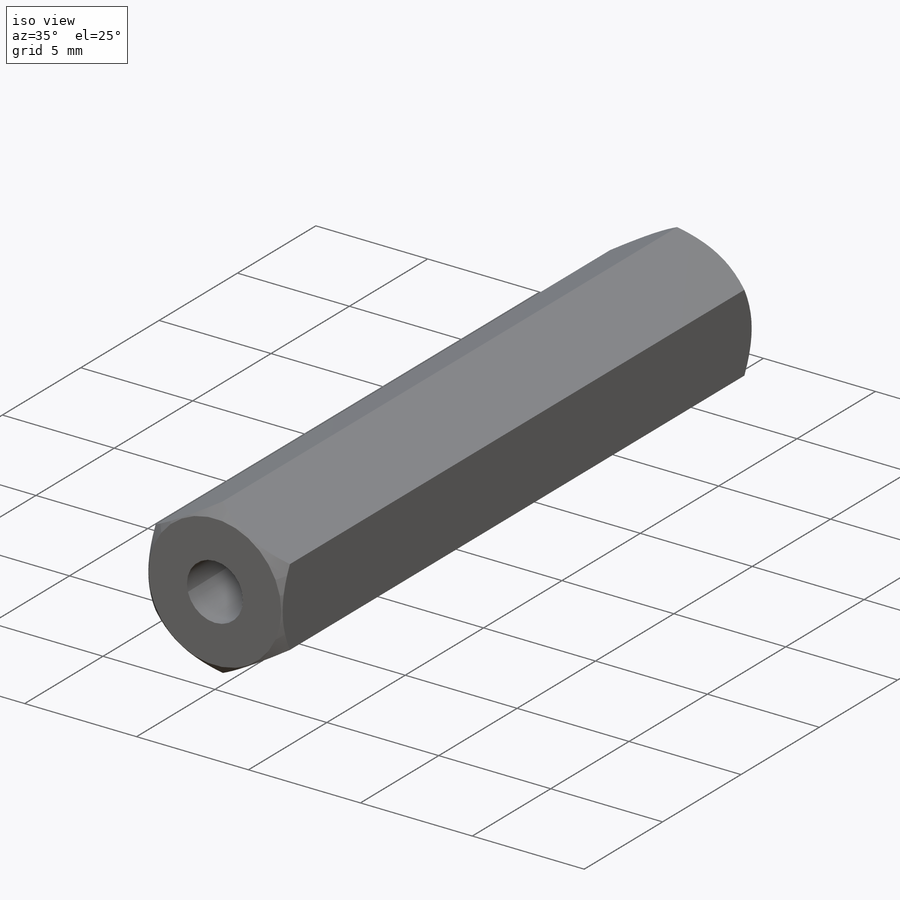
[diagram: iso view]
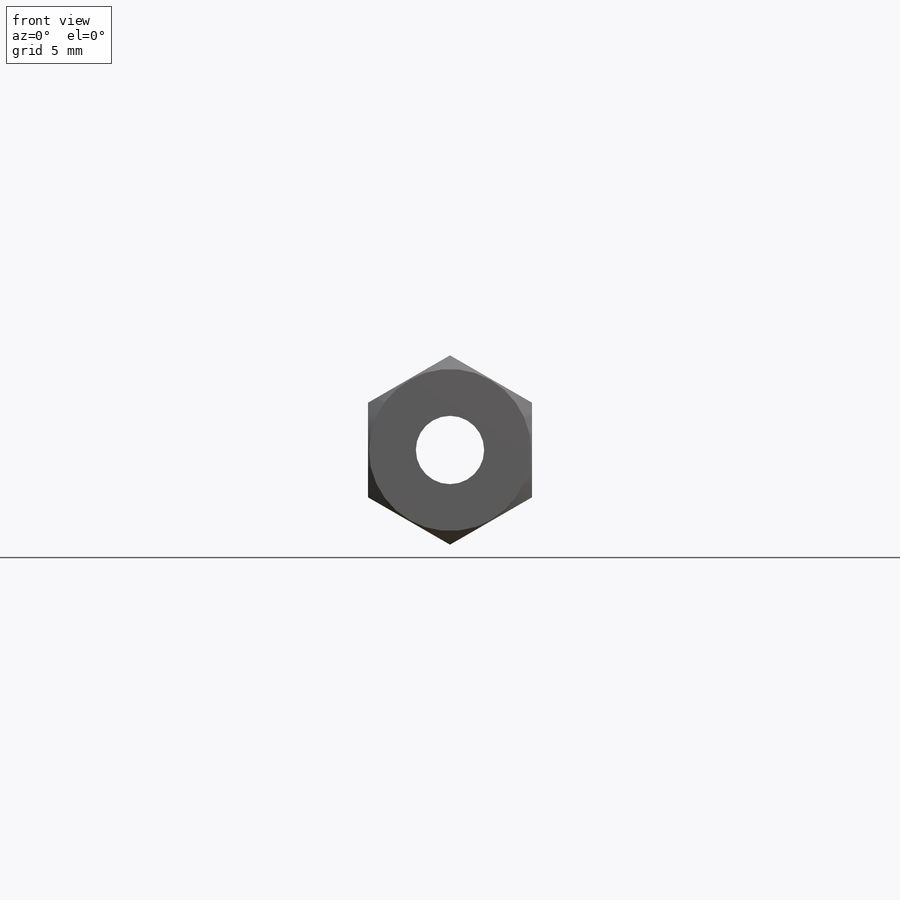
[diagram: front view]
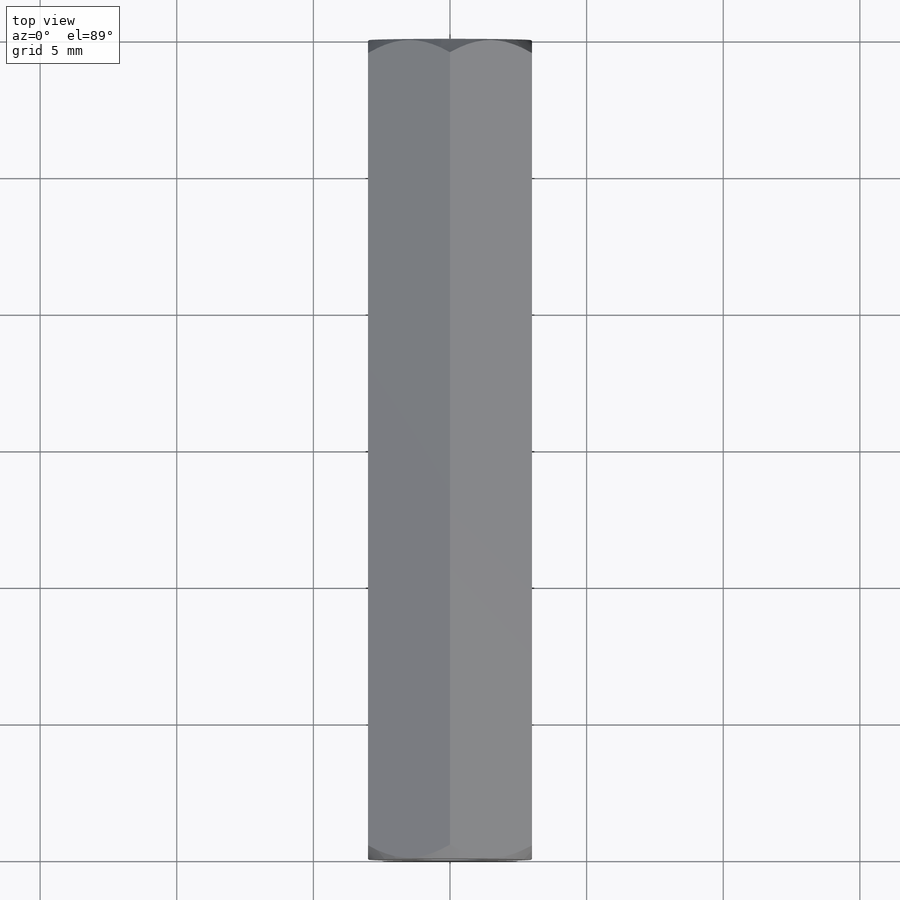
[diagram: top view]
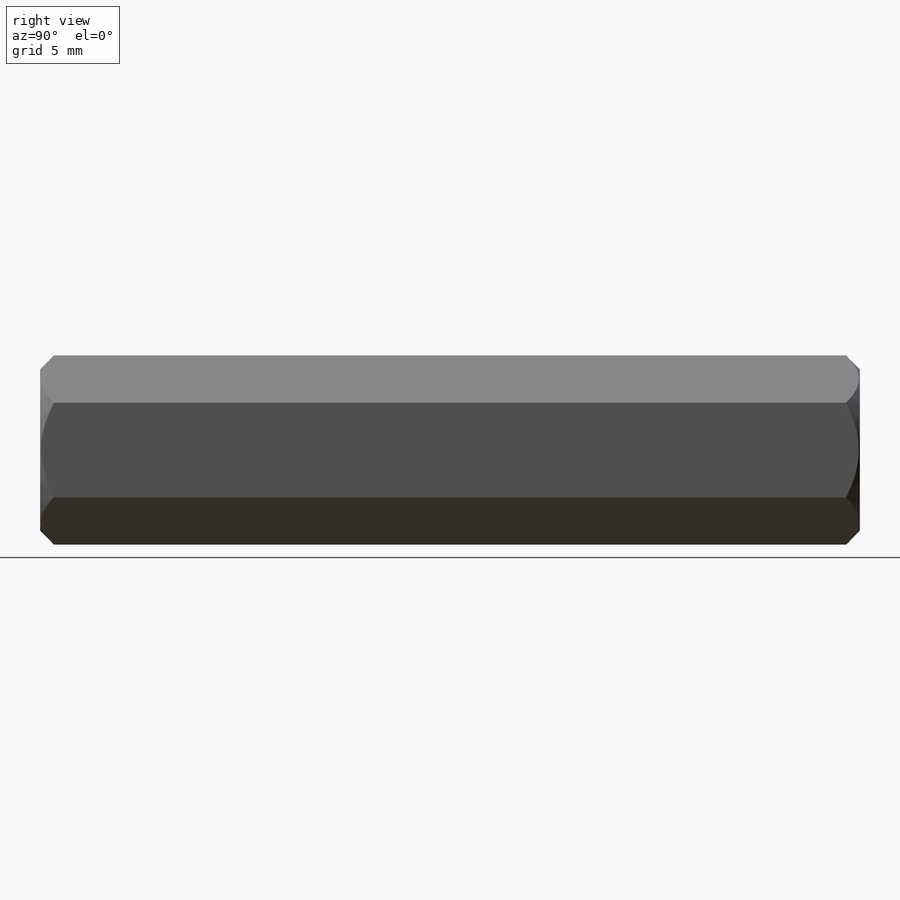
[diagram: right view]
SOLIDWORKS PART (.sldprt)
format: sldprt  version: not decoded by parser v0  size: 184,320 bytes
history: native  units: mm
features: sketch x4, plane x3, material x1, extrude x1, cut_revolve x1, hole x1 (+10 scaffold rows collapsed)
feature tree (21):
  scaffold x10  (default folders/planes/origin — collapsed)
  material  "Material <not specified>"
  plane  "Plan de face"
  plane  "Plan de dessus"
  plane  "Plan de droite"
  sketch  "Esquisse1"  dims[D1=6.0mm D2=2.7mm]
  extrude  "Boss.-Extru.1"  Depth=30mm
  sketch  "Esquisse2"  dims[D1=5.0mm D2=5.0mm D3=5.0mm D4=5.0mm]
  cut_revolve  "Enlèvement de matière-Révolution1"  Angle=360deg
  hole  "Trou pour taraudage pour trou taraudé M31"  Diameter=2.5mm Depth=30mm
  sketch  "Esquisse4"
  sketch  "Esquisse3"  dims[hole-wizard template sketch: 60 standard entries collapsed; hole parameters kept: c18.Profondeur du perçage jusqu'au prochain=30.0mm]
decode coverage: 6 of 7 modeling features carry decoded parameters
note: ~ marks probable driven/reference dimensions
note: suppression state not decoded; provenance and decode notes live in map.json
